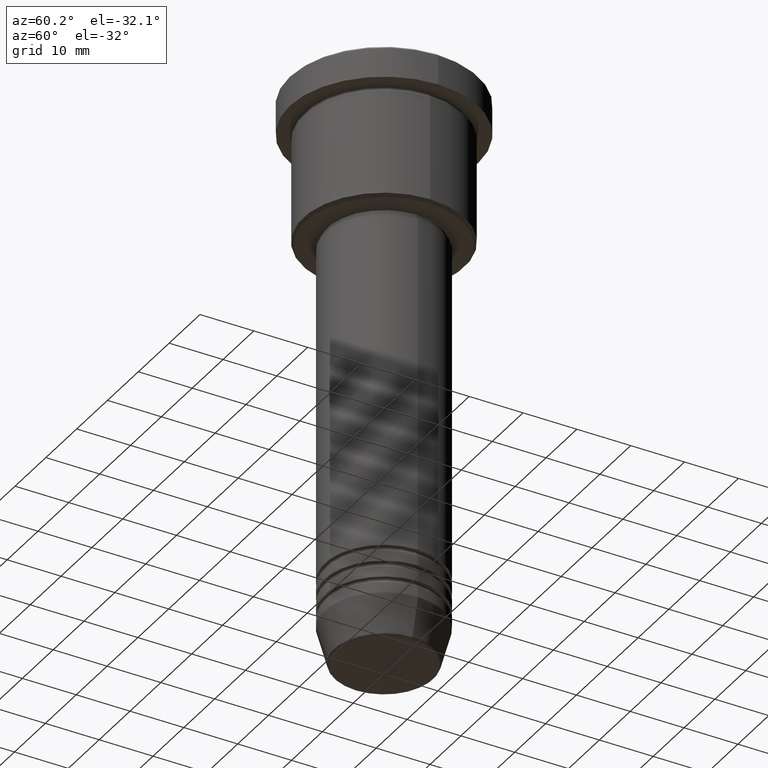
[diagram: clean part render]
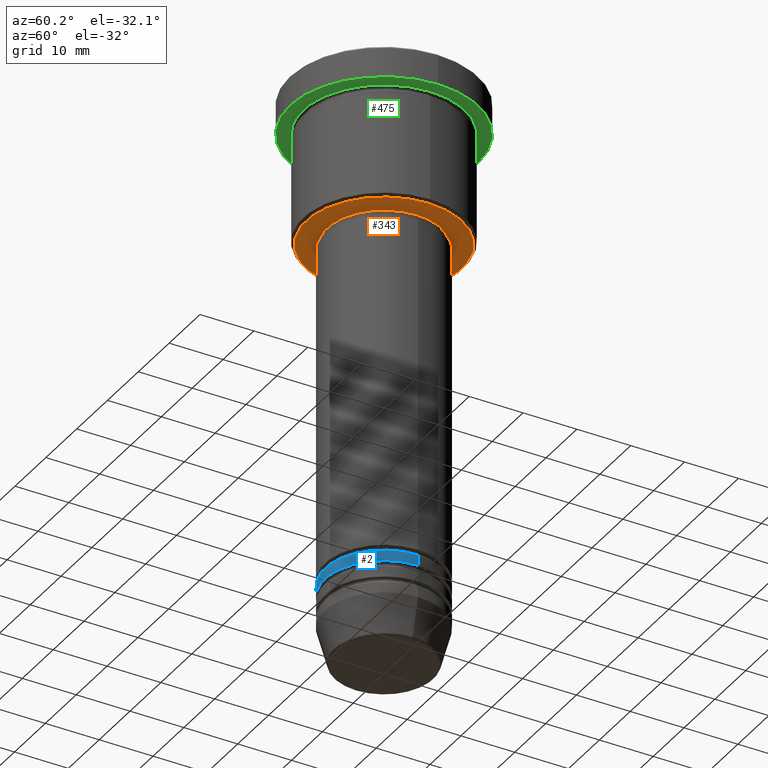
[diagram: same view with three faces highlighted in distinct colors, each labeled with its STEP entity id]
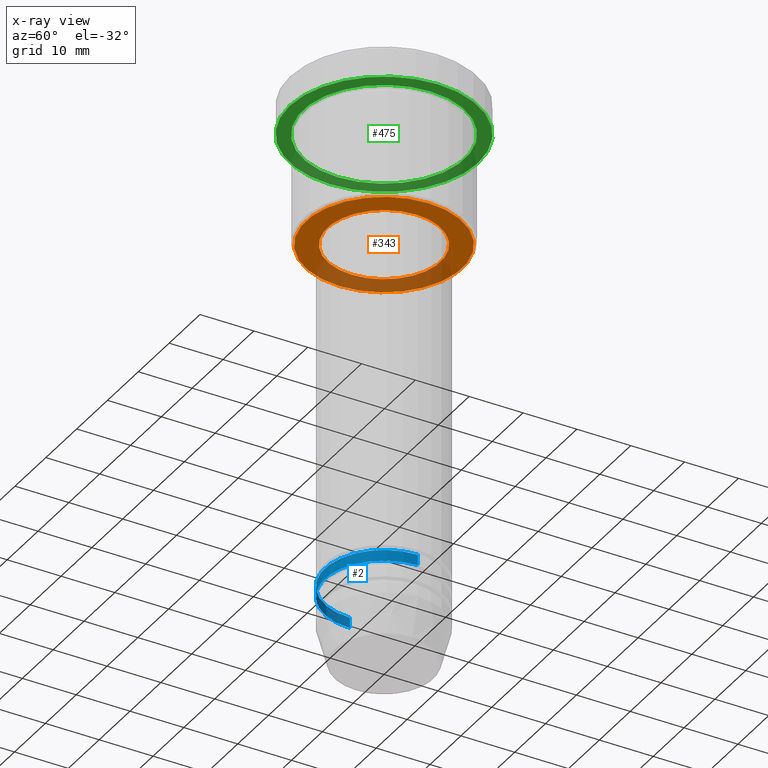
[diagram: x-ray of the same camera — body ghosted, the three highlighted faces saturated]
A machine part, auxiliary view with three faces highlighted in distinct colors.
The next image is the same camera in x-ray (body ghosted, the three faces saturated) — at least one of them is partly hidden behind the body in this view.
Their STEP definitions:

[orange] entity #343 — the highlighted planar face has unit normal (0, 0, -1).
#13 = ORIENTED_EDGE ( 'NONE', *, *, #855, .T. ) ;
#15 = AXIS2_PLACEMENT_3D ( 'NONE', #900, #1173, #352 ) ;
#22 = PLANE ( 'NONE',  #1124 ) ;
#37 = CIRCLE ( 'NONE', #15, 14.49999999999997158 ) ;
#41 = VERTEX_POINT ( 'NONE', #730 ) ;
#58 = CARTESIAN_POINT ( 'NONE',  ( 0.000000000000000000, 0.000000000000000000, -26.99999999999999645 ) ) ;
#65 = ORIENTED_EDGE ( 'NONE', *, *, #1060, .T. ) ;
#73 = DIRECTION ( 'NONE',  ( -0.000000000000000000, -0.000000000000000000, 1.000000000000000000 ) ) ;
#89 = EDGE_LOOP ( 'NONE', ( #293, #65 ) ) ;
#159 = DIRECTION ( 'NONE',  ( 1.000000000000000000, 0.000000000000000000, 0.000000000000000000 ) ) ;
#184 = FACE_BOUND ( 'NONE', #89, .T. ) ;
#234 = DIRECTION ( 'NONE',  ( -1.000000000000000000, 0.000000000000000000, -0.000000000000000000 ) ) ;
#271 = AXIS2_PLACEMENT_3D ( 'NONE', #58, #1143, #405 ) ;
#293 = ORIENTED_EDGE ( 'NONE', *, *, #507, .T. ) ;
#302 = CARTESIAN_POINT ( 'NONE',  ( -14.49999999999997158, 1.806354028742344224E-15, -26.99999999999999645 ) ) ;
#320 = DIRECTION ( 'NONE',  ( 0.000000000000000000, 0.000000000000000000, -1.000000000000000000 ) ) ;
#343 = ADVANCED_FACE ( 'NONE', ( #466, #184 ), #22, .T. ) ;
#346 = AXIS2_PLACEMENT_3D ( 'NONE', #449, #73, #159 ) ;
#352 = DIRECTION ( 'NONE',  ( -1.000000000000000000, 0.000000000000000000, 0.000000000000000000 ) ) ;
#365 = ORIENTED_EDGE ( 'NONE', *, *, #1147, .T. ) ;
#373 = VERTEX_POINT ( 'NONE', #1085 ) ;
#399 = AXIS2_PLACEMENT_3D ( 'NONE', #692, #1146, #679 ) ;
#405 = DIRECTION ( 'NONE',  ( -1.000000000000000000, 0.000000000000000000, 0.000000000000000000 ) ) ;
#407 = VERTEX_POINT ( 'NONE', #1127 ) ;
#410 = CARTESIAN_POINT ( 'NONE',  ( 0.000000000000000000, 15.00000000000000000, -26.99999999999999645 ) ) ;
#449 = CARTESIAN_POINT ( 'NONE',  ( 0.000000000000000000, 0.000000000000000000, -27.00000000000000000 ) ) ;
#466 = FACE_OUTER_BOUND ( 'NONE', #914, .T. ) ;
#507 = EDGE_CURVE ( 'NONE', #373, #41, #601, .T. ) ;
#601 = CIRCLE ( 'NONE', #399, 10.49999999999999822 ) ;
#679 = DIRECTION ( 'NONE',  ( 1.000000000000000000, 0.000000000000000000, 0.000000000000000000 ) ) ;
#692 = CARTESIAN_POINT ( 'NONE',  ( 0.000000000000000000, 0.000000000000000000, -27.00000000000000000 ) ) ;
#730 = CARTESIAN_POINT ( 'NONE',  ( -10.49999999999999822, 1.285879139104720633E-15, -27.00000000000000000 ) ) ;
#746 = CIRCLE ( 'NONE', #271, 14.49999999999997158 ) ;
#809 = VERTEX_POINT ( 'NONE', #302 ) ;
#855 = EDGE_CURVE ( 'NONE', #809, #407, #746, .T. ) ;
#900 = CARTESIAN_POINT ( 'NONE',  ( 0.000000000000000000, 0.000000000000000000, -26.99999999999999645 ) ) ;
#914 = EDGE_LOOP ( 'NONE', ( #365, #13 ) ) ;
#927 = CIRCLE ( 'NONE', #346, 10.49999999999999822 ) ;
#1060 = EDGE_CURVE ( 'NONE', #41, #373, #927, .T. ) ;
#1085 = CARTESIAN_POINT ( 'NONE',  ( 10.49999999999999822, 0.000000000000000000, -27.00000000000000000 ) ) ;
#1124 = AXIS2_PLACEMENT_3D ( 'NONE', #410, #320, #234 ) ;
#1127 = CARTESIAN_POINT ( 'NONE',  ( 14.49999999999997158, 0.000000000000000000, -26.99999999999999645 ) ) ;
#1143 = DIRECTION ( 'NONE',  ( 0.000000000000000000, 0.000000000000000000, -1.000000000000000000 ) ) ;
#1146 = DIRECTION ( 'NONE',  ( -0.000000000000000000, -0.000000000000000000, 1.000000000000000000 ) ) ;
#1147 = EDGE_CURVE ( 'NONE', #407, #809, #37, .T. ) ;
#1173 = DIRECTION ( 'NONE',  ( 0.000000000000000000, 0.000000000000000000, -1.000000000000000000 ) ) ;

[blue] entity #2 — the highlighted cylindrical surface (partial cylindrical patch) has radius 11 mm, axis along (-0, -0, 1).
#2 = ADVANCED_FACE ( 'NONE', ( #542 ), #188, .T. ) ;
#18 = VERTEX_POINT ( 'NONE', #367 ) ;
#57 = VERTEX_POINT ( 'NONE', #533 ) ;
#63 = CIRCLE ( 'NONE', #1131, 11.00000000000000000 ) ;
#118 = EDGE_LOOP ( 'NONE', ( #1015, #691, #644, #850 ) ) ;
#142 = CARTESIAN_POINT ( 'NONE',  ( -11.00000000000000000, 1.347111479062088405E-15, 0.000000000000000000 ) ) ;
#165 = DIRECTION ( 'NONE',  ( -0.000000000000000000, -0.000000000000000000, 1.000000000000000000 ) ) ;
#168 = DIRECTION ( 'NONE',  ( 1.000000000000000000, 0.000000000000000000, 0.000000000000000000 ) ) ;
#173 = EDGE_CURVE ( 'NONE', #57, #774, #953, .T. ) ;
#188 = CYLINDRICAL_SURFACE ( 'NONE', #284, 11.00000000000000000 ) ;
#189 = VECTOR ( 'NONE', #702, 1000.000000000000000 ) ;
#246 = CARTESIAN_POINT ( 'NONE',  ( 11.00000000000000000, 0.000000000000000000, 0.000000000000000000 ) ) ;
#254 = CARTESIAN_POINT ( 'NONE',  ( 11.00000000000000000, 0.000000000000000000, -93.99999999999997158 ) ) ;
#284 = AXIS2_PLACEMENT_3D ( 'NONE', #658, #904, #168 ) ;
#358 = DIRECTION ( 'NONE',  ( 1.000000000000000000, 0.000000000000000000, 0.000000000000000000 ) ) ;
#367 = CARTESIAN_POINT ( 'NONE',  ( 11.00000000000000000, 0.000000000000000000, -91.99999999999998579 ) ) ;
#442 = AXIS2_PLACEMENT_3D ( 'NONE', #806, #627, #358 ) ;
#477 = CIRCLE ( 'NONE', #442, 11.00000000000000000 ) ;
#533 = CARTESIAN_POINT ( 'NONE',  ( -11.00000000000000000, 1.347111479062088405E-15, -93.99999999999997158 ) ) ;
#537 = DIRECTION ( 'NONE',  ( 1.000000000000000000, 0.000000000000000000, 0.000000000000000000 ) ) ;
#542 = FACE_OUTER_BOUND ( 'NONE', #118, .T. ) ;
#575 = CARTESIAN_POINT ( 'NONE',  ( -11.00000000000000000, 1.347111479062088405E-15, -91.99999999999998579 ) ) ;
#589 = EDGE_CURVE ( 'NONE', #57, #650, #477, .T. ) ;
#627 = DIRECTION ( 'NONE',  ( -0.000000000000000000, -0.000000000000000000, 1.000000000000000000 ) ) ;
#644 = ORIENTED_EDGE ( 'NONE', *, *, #954, .T. ) ;
#650 = VERTEX_POINT ( 'NONE', #254 ) ;
#658 = CARTESIAN_POINT ( 'NONE',  ( 0.000000000000000000, 0.000000000000000000, 0.000000000000000000 ) ) ;
#691 = ORIENTED_EDGE ( 'NONE', *, *, #589, .T. ) ;
#702 = DIRECTION ( 'NONE',  ( -0.000000000000000000, -0.000000000000000000, 1.000000000000000000 ) ) ;
#774 = VERTEX_POINT ( 'NONE', #575 ) ;
#806 = CARTESIAN_POINT ( 'NONE',  ( 0.000000000000000000, 0.000000000000000000, -93.99999999999997158 ) ) ;
#850 = ORIENTED_EDGE ( 'NONE', *, *, #1145, .F. ) ;
#867 = DIRECTION ( 'NONE',  ( -0.000000000000000000, -0.000000000000000000, 1.000000000000000000 ) ) ;
#904 = DIRECTION ( 'NONE',  ( -0.000000000000000000, -0.000000000000000000, 1.000000000000000000 ) ) ;
#911 = VECTOR ( 'NONE', #867, 1000.000000000000000 ) ;
#953 = LINE ( 'NONE', #142, #189 ) ;
#954 = EDGE_CURVE ( 'NONE', #650, #18, #1156, .T. ) ;
#1015 = ORIENTED_EDGE ( 'NONE', *, *, #173, .F. ) ;
#1073 = CARTESIAN_POINT ( 'NONE',  ( 0.000000000000000000, 0.000000000000000000, -91.99999999999998579 ) ) ;
#1131 = AXIS2_PLACEMENT_3D ( 'NONE', #1073, #165, #537 ) ;
#1145 = EDGE_CURVE ( 'NONE', #774, #18, #63, .T. ) ;
#1156 = LINE ( 'NONE', #246, #911 ) ;

[green] entity #475 — the highlighted planar face has unit normal (0, 0, -1).
#26 = ORIENTED_EDGE ( 'NONE', *, *, #560, .T. ) ;
#36 = VERTEX_POINT ( 'NONE', #1080 ) ;
#38 = FACE_OUTER_BOUND ( 'NONE', #939, .T. ) ;
#45 = CARTESIAN_POINT ( 'NONE',  ( 0.000000000000000000, 17.50000000000000000, -5.999999999999995559 ) ) ;
#149 = DIRECTION ( 'NONE',  ( 0.000000000000000000, 0.000000000000000000, -1.000000000000000000 ) ) ;
#154 = AXIS2_PLACEMENT_3D ( 'NONE', #319, #1177, #275 ) ;
#181 = EDGE_CURVE ( 'NONE', #296, #36, #599, .T. ) ;
#206 = DIRECTION ( 'NONE',  ( -0.000000000000000000, -0.000000000000000000, 1.000000000000000000 ) ) ;
#231 = DIRECTION ( 'NONE',  ( 1.000000000000000000, 0.000000000000000000, 0.000000000000000000 ) ) ;
#251 = AXIS2_PLACEMENT_3D ( 'NONE', #518, #1123, #306 ) ;
#255 = AXIS2_PLACEMENT_3D ( 'NONE', #689, #428, #231 ) ;
#267 = AXIS2_PLACEMENT_3D ( 'NONE', #45, #149, #948 ) ;
#275 = DIRECTION ( 'NONE',  ( -1.000000000000000000, 0.000000000000000000, 0.000000000000000000 ) ) ;
#296 = VERTEX_POINT ( 'NONE', #1088 ) ;
#306 = DIRECTION ( 'NONE',  ( -1.000000000000000000, 0.000000000000000000, 0.000000000000000000 ) ) ;
#319 = CARTESIAN_POINT ( 'NONE',  ( 0.000000000000000000, 0.000000000000000000, -5.999999999999995559 ) ) ;
#406 = ORIENTED_EDGE ( 'NONE', *, *, #181, .T. ) ;
#412 = VERTEX_POINT ( 'NONE', #1142 ) ;
#416 = FACE_BOUND ( 'NONE', #873, .T. ) ;
#428 = DIRECTION ( 'NONE',  ( -0.000000000000000000, -0.000000000000000000, 1.000000000000000000 ) ) ;
#475 = ADVANCED_FACE ( 'NONE', ( #416, #38 ), #778, .T. ) ;
#518 = CARTESIAN_POINT ( 'NONE',  ( 0.000000000000000000, 0.000000000000000000, -5.999999999999995559 ) ) ;
#538 = CIRCLE ( 'NONE', #154, 15.00000000000000000 ) ;
#539 = VERTEX_POINT ( 'NONE', #588 ) ;
#560 = EDGE_CURVE ( 'NONE', #36, #296, #538, .T. ) ;
#588 = CARTESIAN_POINT ( 'NONE',  ( 17.50000000000000000, 0.000000000000000000, -5.999999999999995559 ) ) ;
#599 = CIRCLE ( 'NONE', #251, 15.00000000000000000 ) ;
#659 = CIRCLE ( 'NONE', #808, 17.50000000000000000 ) ;
#689 = CARTESIAN_POINT ( 'NONE',  ( 0.000000000000000000, 0.000000000000000000, -5.999999999999995559 ) ) ;
#696 = CIRCLE ( 'NONE', #255, 17.50000000000000000 ) ;
#757 = CARTESIAN_POINT ( 'NONE',  ( 0.000000000000000000, 0.000000000000000000, -5.999999999999995559 ) ) ;
#778 = PLANE ( 'NONE',  #267 ) ;
#786 = EDGE_CURVE ( 'NONE', #539, #412, #659, .T. ) ;
#808 = AXIS2_PLACEMENT_3D ( 'NONE', #757, #206, #834 ) ;
#834 = DIRECTION ( 'NONE',  ( 1.000000000000000000, 0.000000000000000000, 0.000000000000000000 ) ) ;
#873 = EDGE_LOOP ( 'NONE', ( #406, #26 ) ) ;
#919 = EDGE_CURVE ( 'NONE', #412, #539, #696, .T. ) ;
#939 = EDGE_LOOP ( 'NONE', ( #1077, #1103 ) ) ;
#948 = DIRECTION ( 'NONE',  ( -1.000000000000000000, 0.000000000000000000, -0.000000000000000000 ) ) ;
#1077 = ORIENTED_EDGE ( 'NONE', *, *, #786, .F. ) ;
#1080 = CARTESIAN_POINT ( 'NONE',  ( 15.00000000000000000, 1.836970198721029589E-15, -5.999999999999994671 ) ) ;
#1088 = CARTESIAN_POINT ( 'NONE',  ( -15.00000000000000000, 0.000000000000000000, -5.999999999999994671 ) ) ;
#1103 = ORIENTED_EDGE ( 'NONE', *, *, #919, .F. ) ;
#1123 = DIRECTION ( 'NONE',  ( -0.000000000000000000, -0.000000000000000000, 1.000000000000000000 ) ) ;
#1142 = CARTESIAN_POINT ( 'NONE',  ( -17.50000000000000000, 2.143131898507868248E-15, -5.999999999999995559 ) ) ;
#1177 = DIRECTION ( 'NONE',  ( -0.000000000000000000, -0.000000000000000000, 1.000000000000000000 ) ) ;